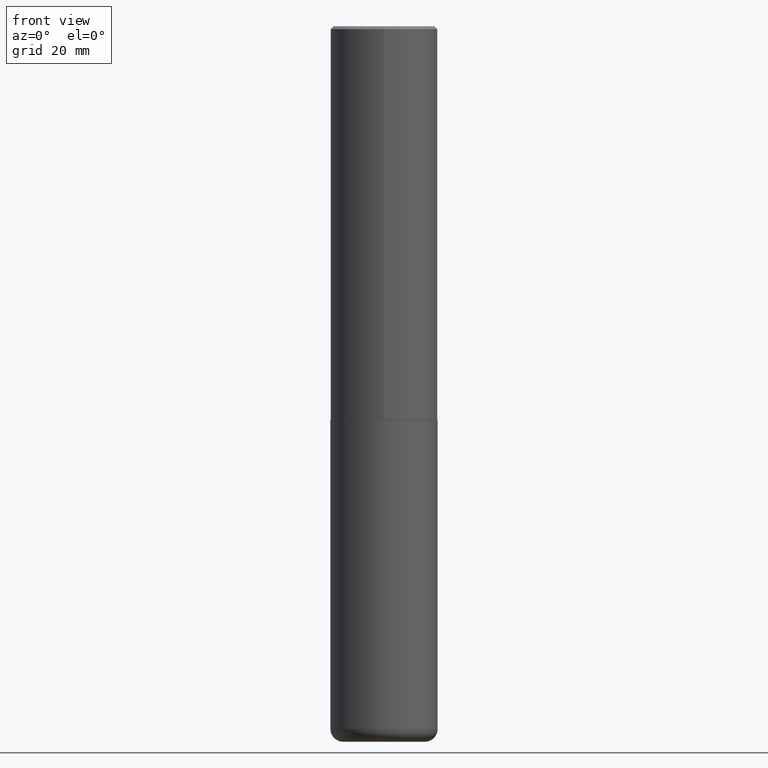
[diagram: clean part render]
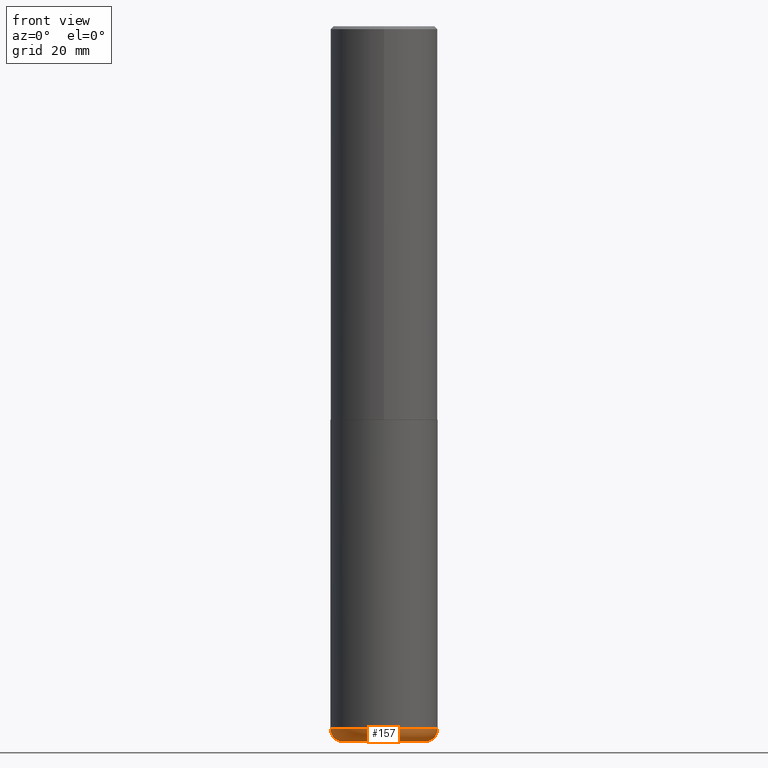
[diagram: same view with one face highlighted and labeled with its STEP entity id]
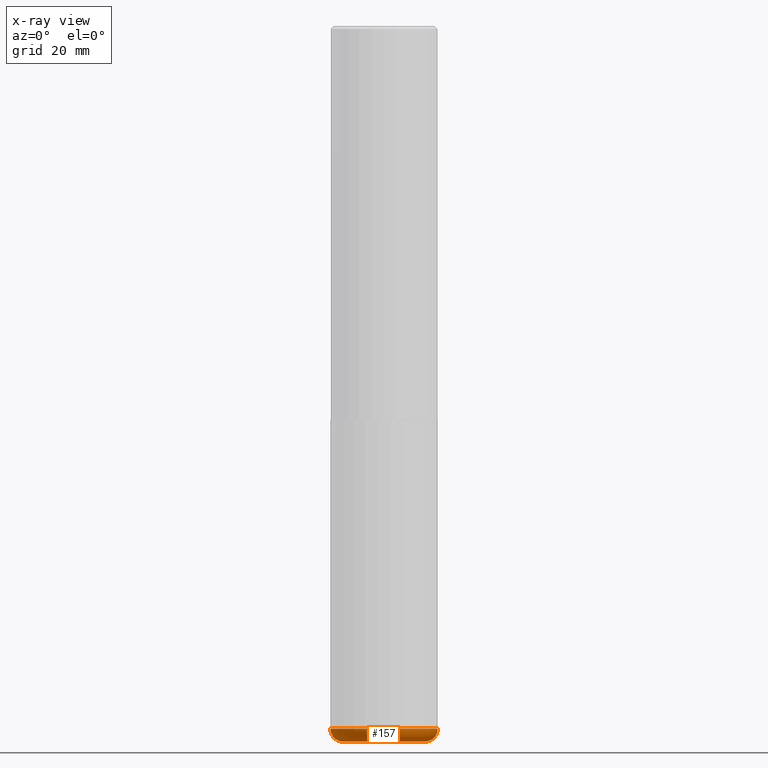
[diagram: x-ray of the same camera — body ghosted, the highlighted face saturated]
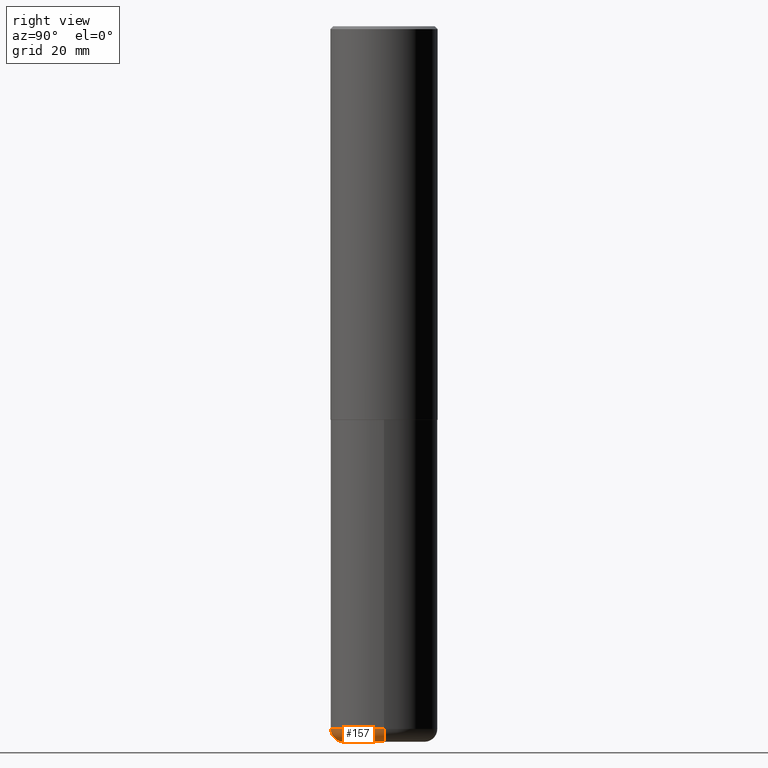
[diagram: same view with one face highlighted and labeled with its STEP entity id]
A machine part, front view. The second image highlights one B-rep face of the part: STEP entity #157.
The next image is the same camera in x-ray: the body ghosted, the highlighted face saturated — about 0% of this face is hidden behind the body in this view.
A second angle (right view) of the same face is appended — the face is thin or edge-on in the first view.
In plain terms, the highlighted toroidal blend (fillet) surface has major radius 7.239 mm and minor (blend) radius 2.286 mm.
Its self-contained STEP definition (entity closure, byte-faithful):
#18 = VERTEX_POINT ( 'NONE', #290 ) ;
#19 = CIRCLE ( 'NONE', #256, 0.08999999999999992728 ) ;
#40 = DIRECTION ( 'NONE',  ( 1.000000000000000000, -6.982962677686269077E-15, 0.000000000000000000 ) ) ;
#42 = DIRECTION ( 'NONE',  ( -2.445468806185136597E-29, 3.491481338843145583E-15, 1.000000000000000000 ) ) ;
#66 = CIRCLE ( 'NONE', #346, 0.2850000000000000311 ) ;
#71 = DIRECTION ( 'NONE',  ( -2.445468806185136597E-29, 3.491481338843145583E-15, 1.000000000000000000 ) ) ;
#76 = EDGE_CURVE ( 'NONE', #411, #310, #19, .T. ) ;
#83 = ORIENTED_EDGE ( 'NONE', *, *, #381, .T. ) ;
#85 = AXIS2_PLACEMENT_3D ( 'NONE', #265, #42, #354 ) ;
#95 = DIRECTION ( 'NONE',  ( -2.445468806185136597E-29, 3.491481338843145583E-15, 1.000000000000000000 ) ) ;
#135 = ORIENTED_EDGE ( 'NONE', *, *, #151, .F. ) ;
#145 = FACE_OUTER_BOUND ( 'NONE', #369, .T. ) ;
#151 = EDGE_CURVE ( 'NONE', #337, #310, #161, .T. ) ;
#156 = ORIENTED_EDGE ( 'NONE', *, *, #76, .T. ) ;
#157 = ADVANCED_FACE ( 'NONE', ( #145 ), #334, .T. ) ;
#161 = CIRCLE ( 'NONE', #275, 0.3749999999999999445 ) ;
#165 = CARTESIAN_POINT ( 'NONE',  ( -0.2850000000000000311, -1.511812657680356008E-14, -4.910000000000000142 ) ) ;
#170 = DIRECTION ( 'NONE',  ( 7.105427357601001859E-15, 1.000000000000000000, -3.491481338843145583E-15 ) ) ;
#173 = CARTESIAN_POINT ( 'NONE',  ( 1.222734403092568523E-28, -1.745740669421572989E-14, -5.000000000000000000 ) ) ;
#221 = CARTESIAN_POINT ( 'NONE',  ( 0.3749999999999999445, -1.976178437785219664E-14, -4.910000000000000142 ) ) ;
#224 = CARTESIAN_POINT ( 'NONE',  ( 0.2850000000000000311, -1.944755105735631653E-14, -5.000000000000000000 ) ) ;
#234 = CARTESIAN_POINT ( 'NONE',  ( 1.200725183836902132E-28, -1.714317337371984662E-14, -4.910000000000000142 ) ) ;
#248 = ORIENTED_EDGE ( 'NONE', *, *, #273, .F. ) ;
#253 = CARTESIAN_POINT ( 'NONE',  ( 0.2850000000000000311, -1.913331773686043011E-14, -4.910000000000000142 ) ) ;
#256 = AXIS2_PLACEMENT_3D ( 'NONE', #253, #375, #347 ) ;
#265 = CARTESIAN_POINT ( 'NONE',  ( 1.200725183836902132E-28, -1.714317337371984662E-14, -4.910000000000000142 ) ) ;
#273 = EDGE_CURVE ( 'NONE', #18, #337, #407, .T. ) ;
#275 = AXIS2_PLACEMENT_3D ( 'NONE', #234, #71, #40 ) ;
#290 = CARTESIAN_POINT ( 'NONE',  ( -0.2850000000000000311, -1.495549900595945556E-14, -5.000000000000000000 ) ) ;
#310 = VERTEX_POINT ( 'NONE', #221 ) ;
#317 = DIRECTION ( 'NONE',  ( 1.000000000000000000, -6.982962677686266711E-15, 0.000000000000000000 ) ) ;
#319 = CARTESIAN_POINT ( 'NONE',  ( -0.3749999999999999445, -1.447863811461947092E-14, -4.910000000000000142 ) ) ;
#334 = TOROIDAL_SURFACE ( 'NONE', #85, 0.2850000000000000311, 0.08999999999999989952 ) ;
#337 = VERTEX_POINT ( 'NONE', #319 ) ;
#346 = AXIS2_PLACEMENT_3D ( 'NONE', #173, #95, #317 ) ;
#347 = DIRECTION ( 'NONE',  ( 1.000000000000000000, -6.982962677686273810E-15, 0.000000000000000000 ) ) ;
#354 = DIRECTION ( 'NONE',  ( 1.000000000000000000, -6.982962677686269077E-15, 4.883557194083113462E-29 ) ) ;
#369 = EDGE_LOOP ( 'NONE', ( #248, #83, #156, #135 ) ) ;
#371 = AXIS2_PLACEMENT_3D ( 'NONE', #165, #170, #382 ) ;
#375 = DIRECTION ( 'NONE',  ( -6.982962677686266711E-15, -1.000000000000000000, 3.491481338843145583E-15 ) ) ;
#381 = EDGE_CURVE ( 'NONE', #18, #411, #66, .T. ) ;
#382 = DIRECTION ( 'NONE',  ( -1.000000000000000000, 7.105427357600996337E-15, 0.000000000000000000 ) ) ;
#407 = CIRCLE ( 'NONE', #371, 0.08999999999999992728 ) ;
#411 = VERTEX_POINT ( 'NONE', #224 ) ;